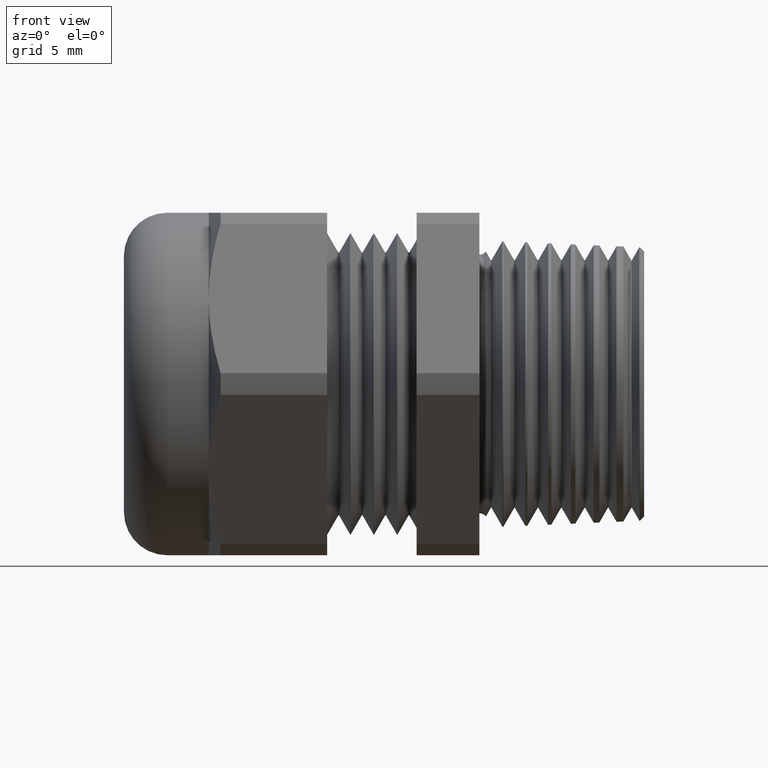
[diagram: clean part render]
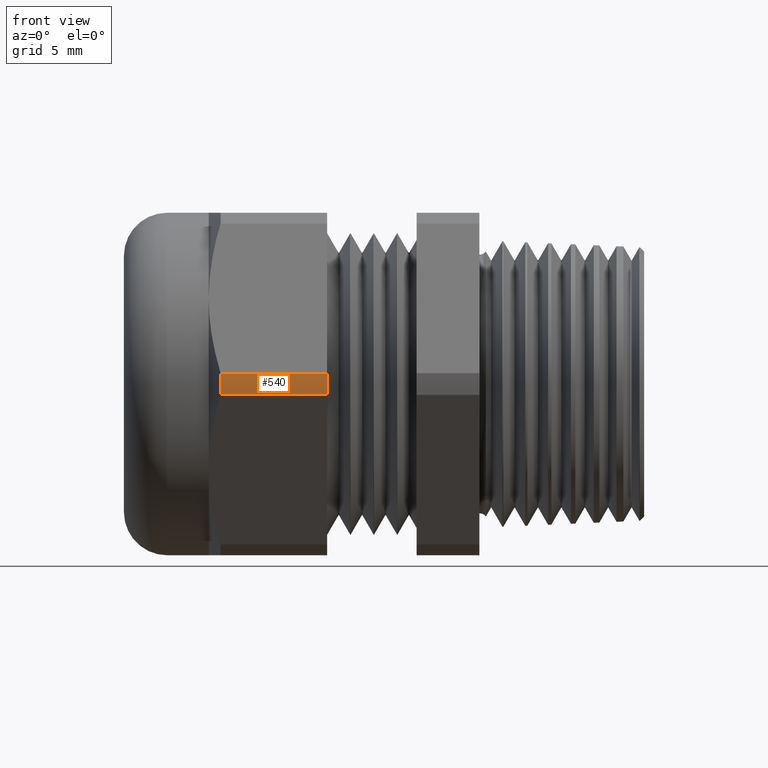
[diagram: same view with one face highlighted and labeled with its STEP entity id]
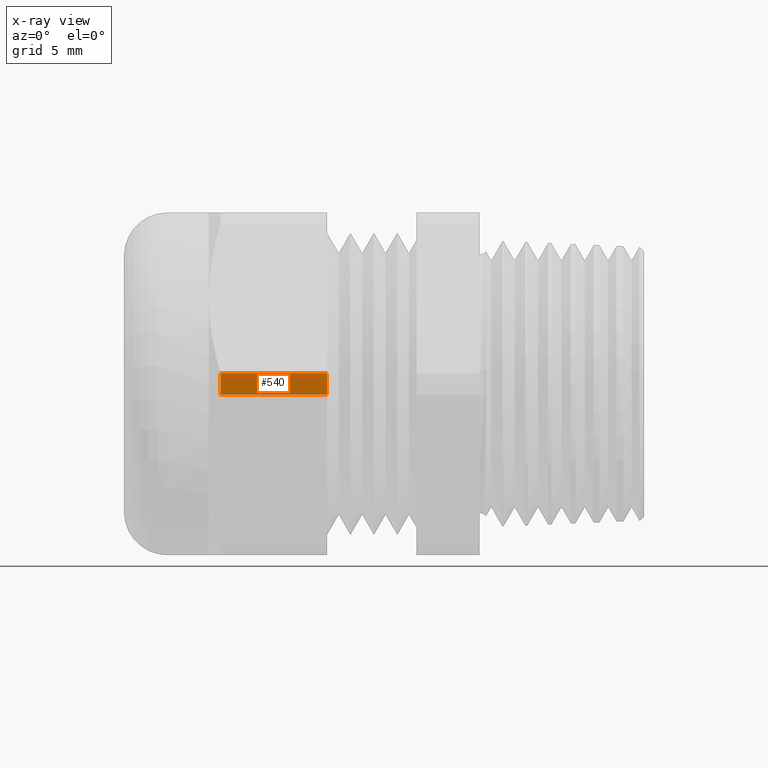
[diagram: x-ray of the same camera — body ghosted, the highlighted face saturated]
A machine part, front view. The second image highlights one B-rep face of the part: STEP entity #540.
The next image is the same camera in x-ray: the body ghosted, the highlighted face saturated — about 0% of this face is hidden behind the body in this view.
In plain terms, the highlighted cylindrical surface (partial cylindrical patch) has radius 15.0774 mm, axis along (-1, 0, 0).
Its self-contained STEP definition (entity closure, byte-faithful):
#523 = EDGE_CURVE ( 'NONE', #545, #551, #2194, .T. ) ;
#540 = ADVANCED_FACE ( 'NONE', ( #2215 ), #2214, .T. ) ;
#541 = EDGE_LOOP ( 'NONE', ( #542, #546, #549, #552 ) ) ;
#542 = ORIENTED_EDGE ( 'NONE', *, *, #543, .F. ) ;
#543 = EDGE_CURVE ( 'NONE', #544, #545, #2208, .T. ) ;
#544 = VERTEX_POINT ( 'NONE', #2204 ) ;
#545 = VERTEX_POINT ( 'NONE', #2203 ) ;
#546 = ORIENTED_EDGE ( 'NONE', *, *, #547, .T. ) ;
#547 = EDGE_CURVE ( 'NONE', #544, #548, #1702, .T. ) ;
#548 = VERTEX_POINT ( 'NONE', #2261 ) ;
#549 = ORIENTED_EDGE ( 'NONE', *, *, #550, .T. ) ;
#550 = EDGE_CURVE ( 'NONE', #548, #551, #2260, .T. ) ;
#551 = VERTEX_POINT ( 'NONE', #2255 ) ;
#552 = ORIENTED_EDGE ( 'NONE', *, *, #523, .F. ) ;
#1701 = CARTESIAN_POINT ( 'NONE',  ( -2.533243884661831900, -0.5926543782626886300, -0.03349250552087942200 ) ) ;
#1702 = LINE ( 'NONE', #1701, #2263 ) ;
#2187 = DIRECTION ( 'NONE',  ( 1.000000000000000000, 0.0000000000000000000, 0.0000000000000000000 ) ) ;
#2188 = VECTOR ( 'NONE', #2187, 39.37007874015748100 ) ;
#2189 = CARTESIAN_POINT ( 'NONE',  ( -2.533243884661831900, -0.5926543782626886300, 0.03349250552087959500 ) ) ;
#2194 = LINE ( 'NONE', #2189, #2188 ) ;
#2203 = CARTESIAN_POINT ( 'NONE',  ( -0.8007805228795399400, -0.5926543782626885200, 0.03349250552087960900 ) ) ;
#2204 = CARTESIAN_POINT ( 'NONE',  ( -0.8007805228795399400, -0.5926543782626886300, -0.03349250552087943600 ) ) ;
#2205 = DIRECTION ( 'NONE',  ( 0.0000000000000000000, 0.0000000000000000000, -1.000000000000000000 ) ) ;
#2206 = DIRECTION ( 'NONE',  ( -1.000000000000000000, 0.0000000000000000000, 0.0000000000000000000 ) ) ;
#2207 = AXIS2_PLACEMENT_3D ( 'NONE', #2213, #2206, #2205 ) ;
#2208 = CIRCLE ( 'NONE', #2207, 0.5936000000000000200 ) ;
#2209 = DIRECTION ( 'NONE',  ( 0.0000000000000000000, 0.0000000000000000000, 1.000000000000000000 ) ) ;
#2210 = DIRECTION ( 'NONE',  ( -1.000000000000000000, 0.0000000000000000000, 0.0000000000000000000 ) ) ;
#2211 = CARTESIAN_POINT ( 'NONE',  ( -0.7238591030180623300, 0.0000000000000000000, 0.0000000000000000000 ) ) ;
#2212 = AXIS2_PLACEMENT_3D ( 'NONE', #2211, #2210, #2209 ) ;
#2213 = CARTESIAN_POINT ( 'NONE',  ( -0.8007805228795399400, 0.0000000000000000000, 0.0000000000000000000 ) ) ;
#2214 = CYLINDRICAL_SURFACE ( 'NONE', #2212, 0.5936000000000000200 ) ;
#2215 = FACE_OUTER_BOUND ( 'NONE', #541, .T. ) ;
#2255 = CARTESIAN_POINT ( 'NONE',  ( -0.4708333333333333300, -0.5926543782626886300, 0.03349250552087959500 ) ) ;
#2256 = DIRECTION ( 'NONE',  ( 0.0000000000000000000, 0.0000000000000000000, 1.000000000000000000 ) ) ;
#2257 = DIRECTION ( 'NONE',  ( -1.000000000000000000, 0.0000000000000000000, 0.0000000000000000000 ) ) ;
#2258 = CARTESIAN_POINT ( 'NONE',  ( -0.4708333333333333300, 0.0000000000000000000, 0.0000000000000000000 ) ) ;
#2259 = AXIS2_PLACEMENT_3D ( 'NONE', #2258, #2257, #2256 ) ;
#2260 = CIRCLE ( 'NONE', #2259, 0.5936000000000000200 ) ;
#2261 = CARTESIAN_POINT ( 'NONE',  ( -0.4708333333333333300, -0.5926543782626886300, -0.03349250552087942200 ) ) ;
#2262 = DIRECTION ( 'NONE',  ( 1.000000000000000000, 0.0000000000000000000, 0.0000000000000000000 ) ) ;
#2263 = VECTOR ( 'NONE', #2262, 39.37007874015748100 ) ;